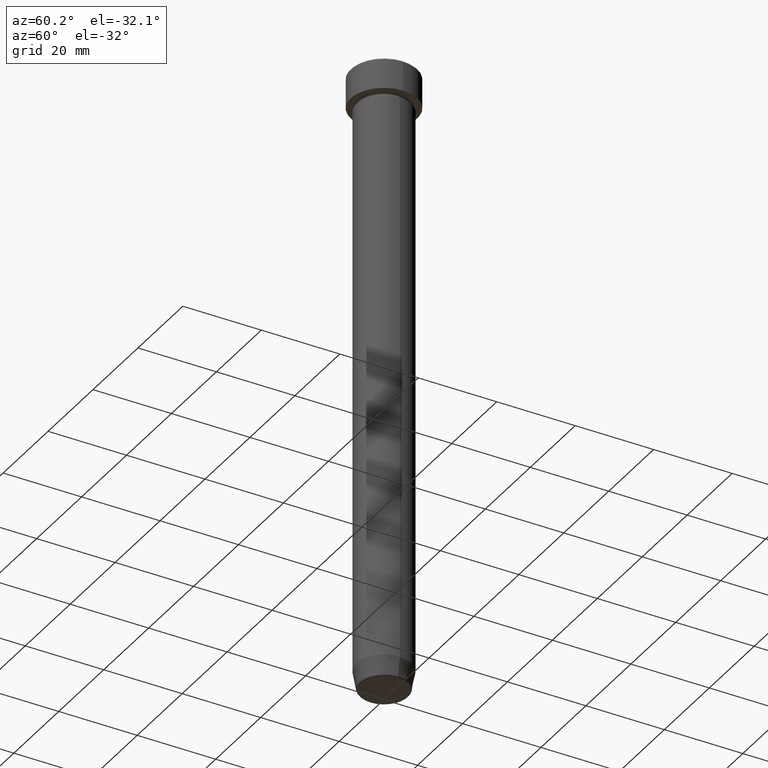
[diagram: clean part render]
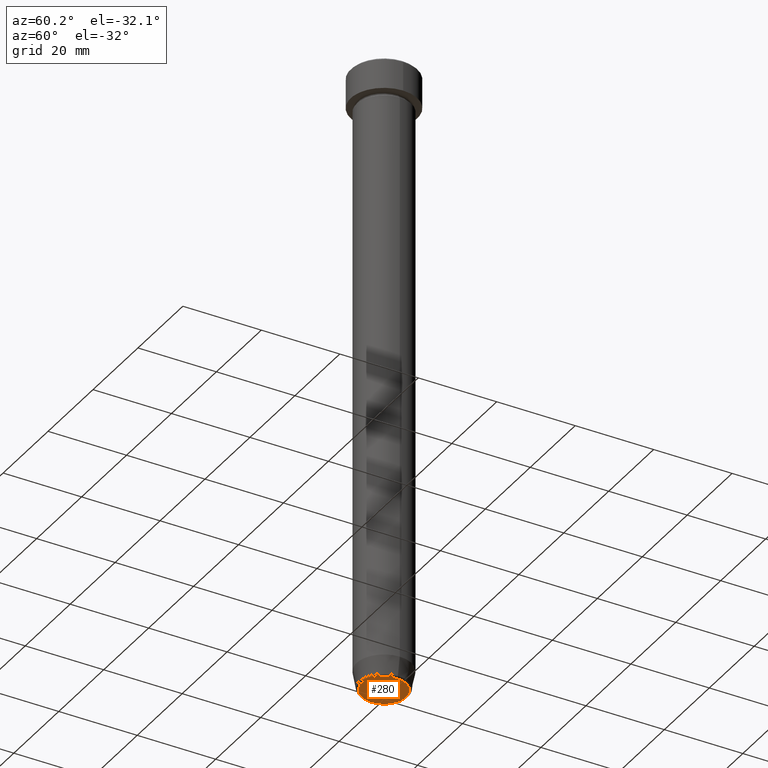
[diagram: same view with one face highlighted and labeled with its STEP entity id]
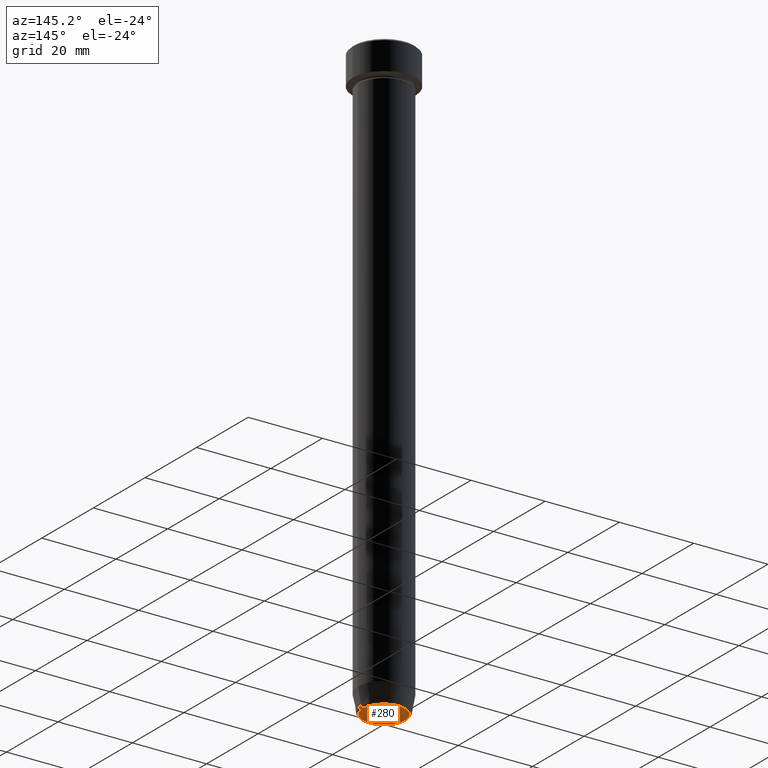
[diagram: same view with one face highlighted and labeled with its STEP entity id]
A machine part, auxiliary view. The second image highlights one B-rep face of the part: STEP entity #280.
A second angle (auxiliary view) of the same face is appended — the face is thin or edge-on in the first view.
In plain terms, the highlighted planar face has unit normal (0, -0, 1).
Its self-contained STEP definition (entity closure, byte-faithful):
#13 = CARTESIAN_POINT ( 'NONE',  ( 0.000000000000000000, 1.347111479062088839E-14, -160.0000000000000000 ) ) ;
#21 = DIRECTION ( 'NONE',  ( 0.000000000000000000, -0.000000000000000000, 1.000000000000000000 ) ) ;
#55 = CIRCLE ( 'NONE', #398, 5.698815280869040656 ) ;
#100 = ORIENTED_EDGE ( 'NONE', *, *, #461, .T. ) ;
#103 = EDGE_CURVE ( 'NONE', #393, #496, #55, .T. ) ;
#132 = CARTESIAN_POINT ( 'NONE',  ( 5.698815280869040656, 0.000000000000000000, -160.0000000000000000 ) ) ;
#140 = CARTESIAN_POINT ( 'NONE',  ( 0.000000000000000000, 0.000000000000000000, -160.0000000000000000 ) ) ;
#222 = DIRECTION ( 'NONE',  ( 1.000000000000000000, 0.000000000000000000, 0.000000000000000000 ) ) ;
#280 = ADVANCED_FACE ( 'NONE', ( #562 ), #426, .F. ) ;
#316 = CIRCLE ( 'NONE', #478, 5.698815280869040656 ) ;
#330 = DIRECTION ( 'NONE',  ( 1.000000000000000000, 0.000000000000000000, 0.000000000000000000 ) ) ;
#367 = CARTESIAN_POINT ( 'NONE',  ( 0.000000000000000000, 0.000000000000000000, -160.0000000000000000 ) ) ;
#382 = AXIS2_PLACEMENT_3D ( 'NONE', #13, #21, #330 ) ;
#393 = VERTEX_POINT ( 'NONE', #132 ) ;
#398 = AXIS2_PLACEMENT_3D ( 'NONE', #367, #551, #553 ) ;
#426 = PLANE ( 'NONE',  #382 ) ;
#448 = EDGE_LOOP ( 'NONE', ( #582, #100 ) ) ;
#453 = DIRECTION ( 'NONE',  ( 0.000000000000000000, 0.000000000000000000, -1.000000000000000000 ) ) ;
#461 = EDGE_CURVE ( 'NONE', #496, #393, #316, .T. ) ;
#478 = AXIS2_PLACEMENT_3D ( 'NONE', #140, #453, #222 ) ;
#496 = VERTEX_POINT ( 'NONE', #505 ) ;
#505 = CARTESIAN_POINT ( 'NONE',  ( -5.698815280869040656, 7.280546308273771592E-16, -160.0000000000000000 ) ) ;
#551 = DIRECTION ( 'NONE',  ( 0.000000000000000000, 0.000000000000000000, -1.000000000000000000 ) ) ;
#553 = DIRECTION ( 'NONE',  ( 1.000000000000000000, 0.000000000000000000, 0.000000000000000000 ) ) ;
#562 = FACE_OUTER_BOUND ( 'NONE', #448, .T. ) ;
#582 = ORIENTED_EDGE ( 'NONE', *, *, #103, .T. ) ;